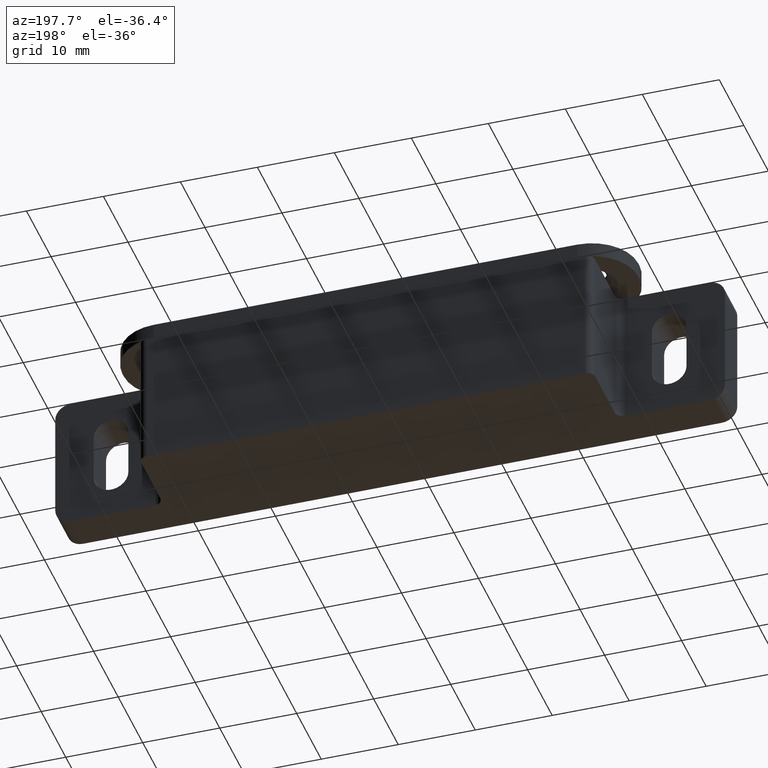
[diagram: clean part render]
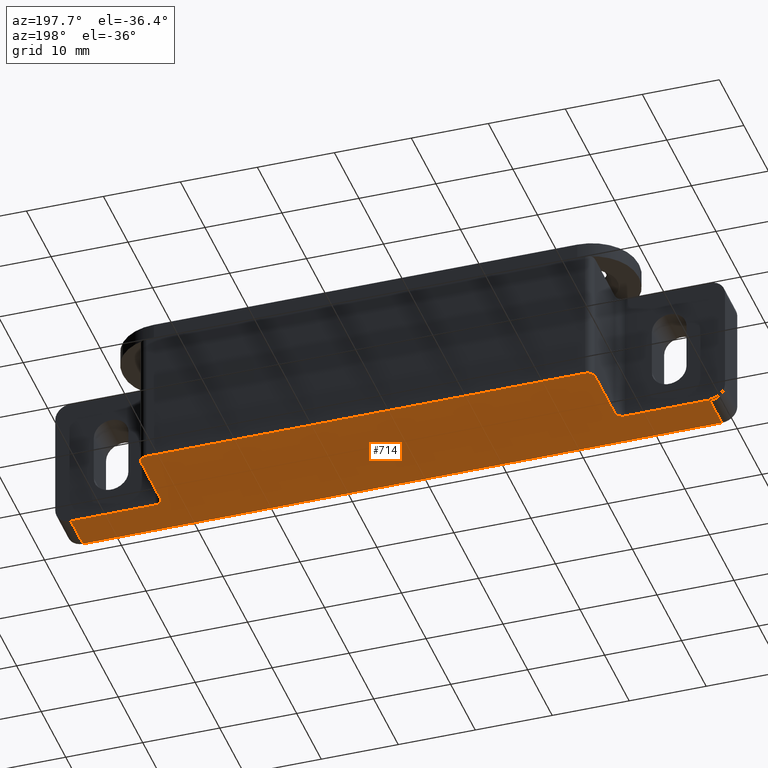
[diagram: same view with one face highlighted and labeled with its STEP entity id]
A machine part, auxiliary view. The second image highlights one B-rep face of the part: STEP entity #714.
In plain terms, the highlighted planar face has unit normal (0, 0, 1).
Its self-contained STEP definition (entity closure, byte-faithful):
#41=PLANE('',#759);
#62=FACE_OUTER_BOUND('',#102,.T.);
#102=EDGE_LOOP('',(#495,#496,#497,#498,#499,#500,#501,#502,#503,#504,#505,
#506));
#154=LINE('',#1077,#218);
#155=LINE('',#1080,#219);
#156=LINE('',#1084,#220);
#157=LINE('',#1088,#221);
#158=LINE('',#1092,#222);
#159=LINE('',#1096,#223);
#160=LINE('',#1098,#224);
#161=LINE('',#1099,#225);
#218=VECTOR('',#847,5.);
#219=VECTOR('',#850,11.);
#220=VECTOR('',#853,7.99999999999998);
#221=VECTOR('',#856,57.);
#222=VECTOR('',#859,8.);
#223=VECTOR('',#862,11.);
#224=VECTOR('',#863,5.);
#225=VECTOR('',#864,83.);
#283=CIRCLE('',#760,1.);
#284=CIRCLE('',#761,1.);
#285=CIRCLE('',#762,1.);
#286=CIRCLE('',#763,1.);
#319=VERTEX_POINT('',#1070);
#322=VERTEX_POINT('',#1075);
#323=VERTEX_POINT('',#1079);
#324=VERTEX_POINT('',#1081);
#325=VERTEX_POINT('',#1083);
#326=VERTEX_POINT('',#1085);
#327=VERTEX_POINT('',#1087);
#328=VERTEX_POINT('',#1089);
#329=VERTEX_POINT('',#1091);
#330=VERTEX_POINT('',#1093);
#331=VERTEX_POINT('',#1095);
#332=VERTEX_POINT('',#1097);
#392=EDGE_CURVE('',#322,#319,#154,.T.);
#393=EDGE_CURVE('',#323,#322,#155,.T.);
#394=EDGE_CURVE('',#324,#323,#283,.T.);
#395=EDGE_CURVE('',#325,#324,#156,.T.);
#396=EDGE_CURVE('',#326,#325,#284,.T.);
#397=EDGE_CURVE('',#327,#326,#157,.T.);
#398=EDGE_CURVE('',#328,#327,#285,.T.);
#399=EDGE_CURVE('',#329,#328,#158,.T.);
#400=EDGE_CURVE('',#330,#329,#286,.T.);
#401=EDGE_CURVE('',#331,#330,#159,.T.);
#402=EDGE_CURVE('',#332,#331,#160,.T.);
#403=EDGE_CURVE('',#319,#332,#161,.T.);
#495=ORIENTED_EDGE('',*,*,#392,.F.);
#496=ORIENTED_EDGE('',*,*,#393,.F.);
#497=ORIENTED_EDGE('',*,*,#394,.F.);
#498=ORIENTED_EDGE('',*,*,#395,.F.);
#499=ORIENTED_EDGE('',*,*,#396,.F.);
#500=ORIENTED_EDGE('',*,*,#397,.F.);
#501=ORIENTED_EDGE('',*,*,#398,.F.);
#502=ORIENTED_EDGE('',*,*,#399,.F.);
#503=ORIENTED_EDGE('',*,*,#400,.F.);
#504=ORIENTED_EDGE('',*,*,#401,.F.);
#505=ORIENTED_EDGE('',*,*,#402,.F.);
#506=ORIENTED_EDGE('',*,*,#403,.F.);
#714=ADVANCED_FACE('',(#62),#41,.F.);
#759=AXIS2_PLACEMENT_3D('',#1078,#848,#849);
#760=AXIS2_PLACEMENT_3D('',#1082,#851,#852);
#761=AXIS2_PLACEMENT_3D('',#1086,#854,#855);
#762=AXIS2_PLACEMENT_3D('',#1090,#857,#858);
#763=AXIS2_PLACEMENT_3D('',#1094,#860,#861);
#847=DIRECTION('',(0.,-1.,0.));
#848=DIRECTION('center_axis',(0.,0.,1.));
#849=DIRECTION('ref_axis',(1.,0.,0.));
#850=DIRECTION('',(-1.,5.55111512312578E-16,0.));
#851=DIRECTION('center_axis',(0.,0.,-1.));
#852=DIRECTION('ref_axis',(0.70710678118655,-0.707106781186545,0.));
#853=DIRECTION('',(6.66133814775095E-16,-1.,0.));
#854=DIRECTION('center_axis',(0.,0.,1.));
#855=DIRECTION('ref_axis',(-0.707106781186549,0.707106781186546,0.));
#856=DIRECTION('',(-1.,-4.1398146680938E-16,0.));
#857=DIRECTION('center_axis',(0.,0.,1.));
#858=DIRECTION('ref_axis',(0.707106781186546,0.707106781186549,0.));
#859=DIRECTION('',(0.,1.,0.));
#860=DIRECTION('center_axis',(0.,0.,-1.));
#861=DIRECTION('ref_axis',(-0.707106781186546,-0.707106781186549,0.));
#862=DIRECTION('',(-1.,0.,0.));
#863=DIRECTION('',(0.,1.,0.));
#864=DIRECTION('',(1.,0.,0.));
#1070=CARTESIAN_POINT('',(2.,0.,0.));
#1075=CARTESIAN_POINT('',(2.,5.,0.));
#1077=CARTESIAN_POINT('',(2.,5.56372549019608,0.));
#1078=CARTESIAN_POINT('Origin',(43.5,6.12745098039215,0.));
#1079=CARTESIAN_POINT('',(13.,4.99999999999999,0.));
#1080=CARTESIAN_POINT('',(14.,4.99999999999999,0.));
#1081=CARTESIAN_POINT('',(14.,5.99999999999999,0.));
#1082=CARTESIAN_POINT('Origin',(13.,5.99999999999999,0.));
#1083=CARTESIAN_POINT('',(14.,14.,0.));
#1084=CARTESIAN_POINT('',(14.,15.,0.));
#1085=CARTESIAN_POINT('',(15.,15.,0.));
#1086=CARTESIAN_POINT('Origin',(15.,14.,0.));
#1087=CARTESIAN_POINT('',(72.,15.,0.));
#1088=CARTESIAN_POINT('',(73.,15.,0.));
#1089=CARTESIAN_POINT('',(73.,14.,0.));
#1090=CARTESIAN_POINT('Origin',(72.,14.,0.));
#1091=CARTESIAN_POINT('',(73.,6.,0.));
#1092=CARTESIAN_POINT('',(73.,5.,0.));
#1093=CARTESIAN_POINT('',(74.,5.,0.));
#1094=CARTESIAN_POINT('Origin',(74.,6.,0.));
#1095=CARTESIAN_POINT('',(85.,5.,0.));
#1096=CARTESIAN_POINT('',(87.,5.,0.));
#1097=CARTESIAN_POINT('',(85.,0.,0.));
#1098=CARTESIAN_POINT('',(85.,3.06372549019608,0.));
#1099=CARTESIAN_POINT('',(0.,0.,0.));